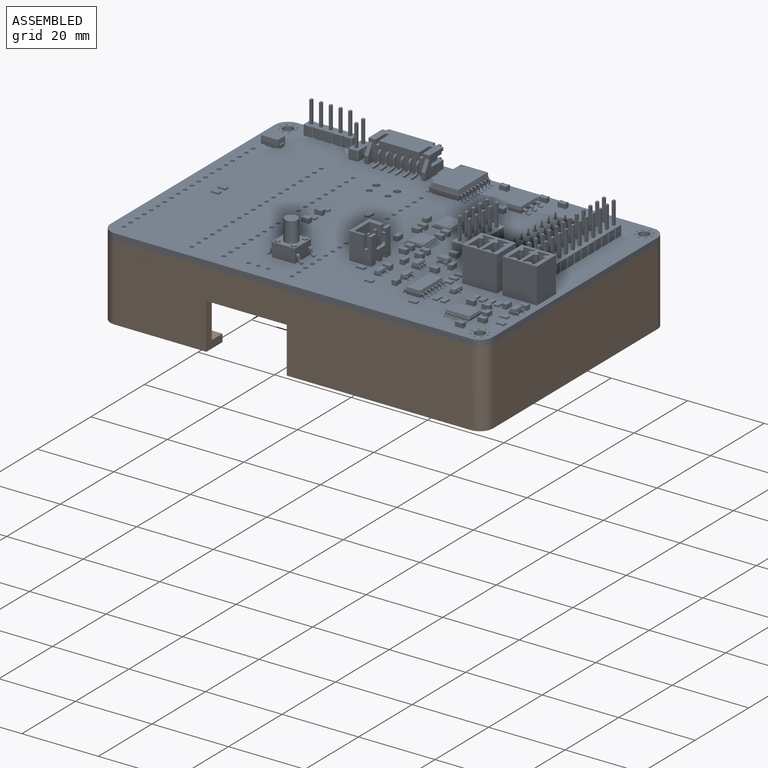
[diagram: assembled view]
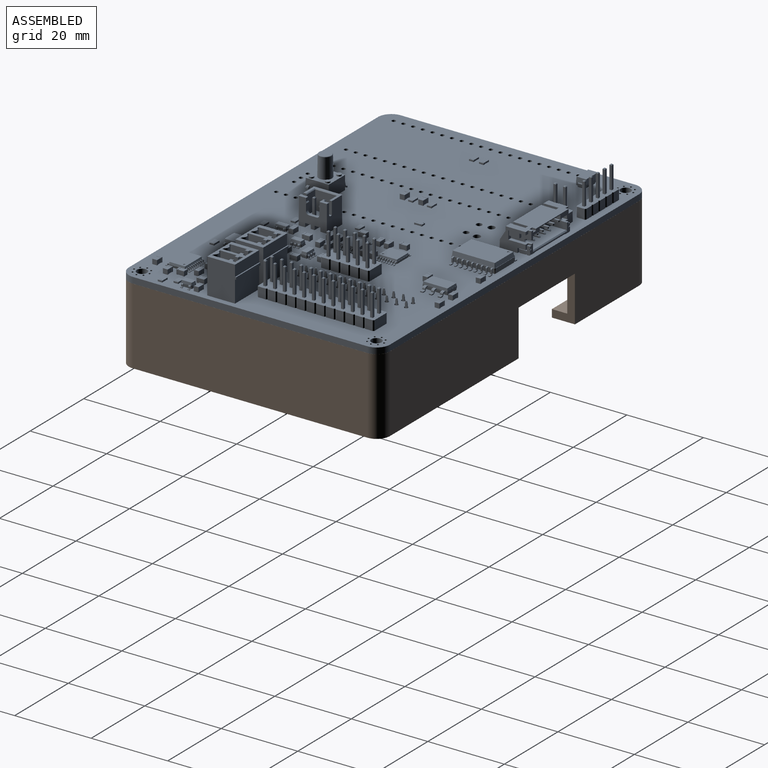
[diagram: assembled view, second angle]
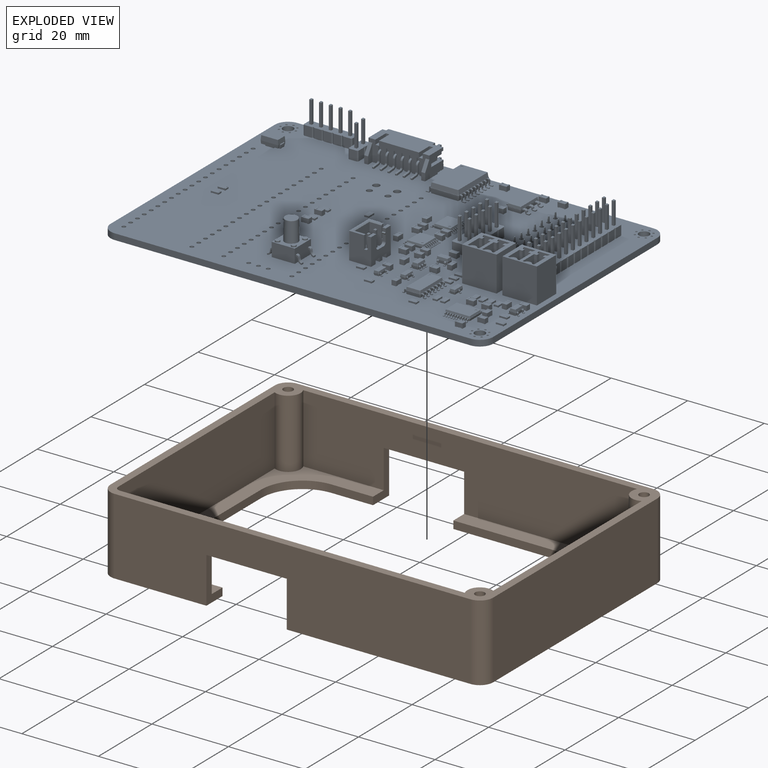
[diagram: exploded view]
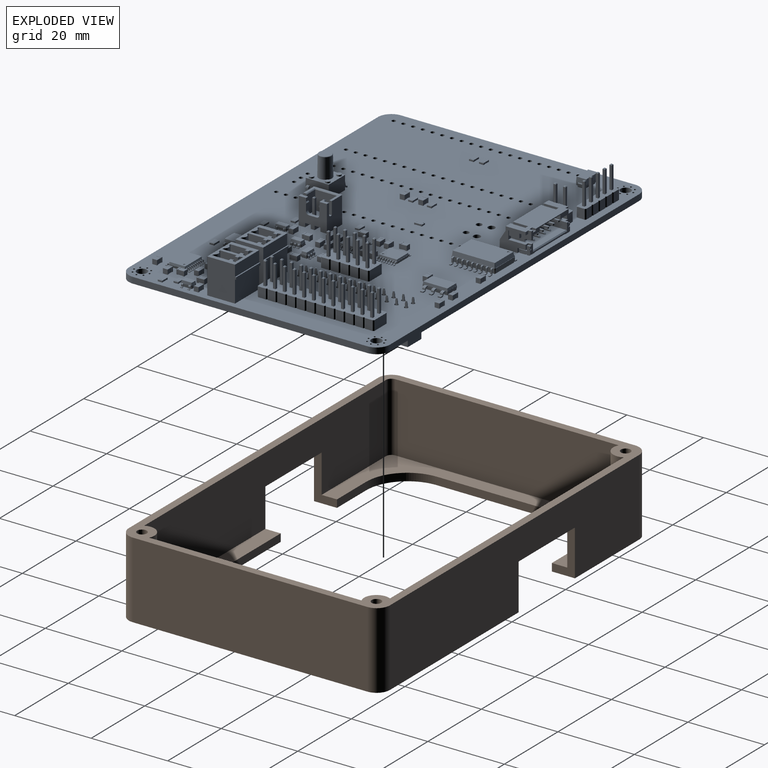
[diagram: exploded view, second angle]
FCSTD DOCUMENT  (FreeCAD 0.20R29603 (Git))
Label: Case1
License: All rights reserved
LicenseURL: http://en.wikipedia.org/wiki/All_rights_reserved
objects: App::Link×53, Part::Feature×39, App::Part×7, Sketcher::SketchObject×4, PartDesign::Pocket×2, PartDesign::CoordinateSystem×1, PartDesign::SubShapeBinder×1, PartDesign::Pad×1, PartDesign::Thickness×1, PartDesign::Body×1
note: 54 computed .brp shape members not serialized (recipe doc carries the construction recipe); baked Part::Feature solids carry a one-line shape summary decoded from their .brp

FEATURE [PartDesign::CoordinateSystem] Local_CS_76d8
  AttacherType = Attacher::AttachEngine3D
  MapMode = 2
  Support = -> [X_Axis001]
FEATURE [Part::Feature] Pcb_76d8
  Placement = pos=(-93.7,99.7,0) rot=(0,0,1;0rad)
  shape: bbox 100 x 68.25 x 1.592 mm, 195 faces (baked)
FEATURE [Sketcher::SketchObject] PCB_Sketch_76d8
  FullyConstrained = false
  sketch-geometry (8):
    g0: LineSegment StartX=-61.95 StartY=-14.55 StartZ=0 EndX=31.05 EndY=-14.55 EndZ=0
    g1: LineSegment StartX=31.0251 StartY=53.7 StartZ=0 EndX=-61.95 EndY=53.7 EndZ=0
    g2: LineSegment StartX=34.55 StartY=-11.05 StartZ=0 EndX=34.5251 EndY=50.2 EndZ=0
    g3: LineSegment StartX=-65.45 StartY=50.2 StartZ=0 EndX=-65.45 EndY=-11.05 EndZ=0
    g4: ArcOfCircle CenterX=-61.95 CenterY=-11.05 CenterZ=0 NormalX=0 NormalY=0 NormalZ=-1 AngleXU=-1.5708 Radius=3.5 StartAngle=0 EndAngle=1.5708
    g5: ArcOfCircle CenterX=31.0251 CenterY=50.2 CenterZ=0 NormalX=0 NormalY=0 NormalZ=-1 AngleXU=1.5708 Radius=3.5 StartAngle=0 EndAngle=1.5708
    g6: ArcOfCircle CenterX=31.05 CenterY=-11.05 CenterZ=0 NormalX=0 NormalY=0 NormalZ=-1 AngleXU=3.14159 Radius=3.5 StartAngle=0 EndAngle=1.5708
    g7: ArcOfCircle CenterX=-61.95 CenterY=50.2 CenterZ=0 NormalX=0 NormalY=0 NormalZ=-1 AngleXU=-2.59331e-07 Radius=3.5 StartAngle=0 EndAngle=1.5708
  constraints (8):
    c: Coincident(g3,g4)
    c: Coincident(g3,g7)
    c: Coincident(g0,g4)
    c: Coincident(g1,g7)
    c: Coincident(g1,g5)
    c: Coincident(g0,g6)
    c: Coincident(g2,g5)
    c: Coincident(g2,g6)
FEATURE [App::Part] Board_Geoms_76d8
  Group = -> [Pcb_76d8,PCB_Sketch_76d8]
  Origin = -> Origin
FEATURE [Part::Feature] Shape  label="R5_R_0805_2012Metric_c332fffaa67e"
  Placement = pos=(-31.581,15.88,0) rot=(0,0,1;0rad)
  shape: bbox 2 x 1.2 x 0.45 mm, 26 faces (baked)
FEATURE [Part::Feature] Shape001  label="D3_SOT_23_f131065e1f10"
  Placement = pos=(15.05,3,0) rot=(0,0,1;0rad)
  shape: bbox 2.5 x 3 x 1.2 mm, 76 faces (baked)
FEATURE [App::Link] R5_R_0805_2012Metric_c332fffaa67e_ln_  label="R16_R_0805_2012Metric_1e8cd921f4f6"
  LinkPlacement = pos=(32.3,-4.85,0) rot=(0,0,1;0rad)
  LinkedObject = -> Shape
  Placement = pos=(32.3,-4.85,0) rot=(0,0,1;0rad)
FEATURE [Part::Feature] Shape002  label="C21_C_0805_2012Metric_70c36fc92965"
  Placement = pos=(28.4,-6.2,0) rot=(0,0,1;0rad)
  shape: bbox 2 x 1.25 x 1.25 mm, 28 faces (baked)
FEATURE [App::Link] R5_R_0805_2012Metric_c332fffaa67e_ln_001  label="R6_R_0805_2012Metric_d104ffac6305"
  LinkPlacement = pos=(-31.5716,20.8076,0) rot=(0,0,1;0rad)
  LinkedObject = -> Shape
  Placement = pos=(-31.5716,20.8076,0) rot=(0,0,1;0rad)
FEATURE [App::Link] C21_C_0805_2012Metric_70c36fc92965_ln_  label="C22_C_0805_2012Metric_fbacbd021950"
  LinkPlacement = pos=(25.8,-10.8,0) rot=(0,0,1;0rad)
  LinkedObject = -> Shape002
  Placement = pos=(25.8,-10.8,0) rot=(0,0,1;0rad)
FEATURE [App::Link] C21_C_0805_2012Metric_70c36fc92965_ln_001  label="C18_C_0805_2012Metric_fe1dbd764d00"
  LinkPlacement = pos=(27.5,-3.2,0) rot=(0,0,-1;1.5708rad)
  LinkedObject = -> Shape002
  Placement = pos=(27.5,-3.2,0) rot=(0,0,-1;1.5708rad)
FEATURE [Part::Feature] Shape003  label="U2_TSSOP_16_44x5mm_P065mm_5dc6f22c2fcc"
  Placement = pos=(-5.2,19,0) rot=(0,0,1;3.14159rad)
  shape: bbox 6.4 x 5 x 1.1 mm, 260 faces (baked)
FEATURE [App::Link] C21_C_0805_2012Metric_70c36fc92965_ln_002  label="C2_C_0805_2012Metric_80b1b84c45aa"
  LinkPlacement = pos=(-3.2,22.95,0) rot=(0,0,1;0rad)
  LinkedObject = -> Shape002
  Placement = pos=(-3.2,22.95,0) rot=(0,0,1;0rad)
FEATURE [App::Link] R5_R_0805_2012Metric_c332fffaa67e_ln_002  label="R1_R_0805_2012Metric_e922cae71224"
  LinkPlacement = pos=(26.3,2.75,0) rot=(0,0,-1;1.5708rad)
  LinkedObject = -> Shape
  Placement = pos=(26.3,2.75,0) rot=(0,0,-1;1.5708rad)
FEATURE [Part::Feature] Shape004  label="JP1_PinHeader_1x02_P254mm_Vertical_bab78b325c3c"
  Placement = pos=(-41.35,46.25,0) rot=(0,0,1;3.14159rad)
  shape: bbox 2.54 x 5.08 x 11.54 mm, 52 faces (baked)
FEATURE [Part::Feature] Shape005  label="U12_SOIC_18W_75x116mm_P127mm_c252929a2548"
  Placement = pos=(-14.3625,46.25,0) rot=(0,0,1;0rad)
  shape: bbox 10.3 x 11.55 x 2.75 mm, 306 faces (baked)
FEATURE [App::Link] C21_C_0805_2012Metric_70c36fc92965_ln_003  label="C8_C_0805_2012Metric_d8ee7a67ca2f"
  LinkPlacement = pos=(-5.45,14.95,0) rot=(0,0,1;3.14159rad)
  LinkedObject = -> Shape002
  Placement = pos=(-5.45,14.95,0) rot=(0,0,1;3.14159rad)
FEATURE [App::Link] C21_C_0805_2012Metric_70c36fc92965_ln_004  label="C9_C_0805_2012Metric_418fcd8e790b"
  LinkPlacement = pos=(-9.2,25.2,0) rot=(0,0,1;3.14159rad)
  LinkedObject = -> Shape002
  Placement = pos=(-9.2,25.2,0) rot=(0,0,1;3.14159rad)
FEATURE [App::Link] C21_C_0805_2012Metric_70c36fc92965_ln_005  label="C12_C_0805_2012Metric_316df33b629b"
  LinkPlacement = pos=(4.506,17.35,0) rot=(0,0,1;3.14159rad)
  LinkedObject = -> Shape002
  Placement = pos=(4.506,17.35,0) rot=(0,0,1;3.14159rad)
FEATURE [App::Link] C21_C_0805_2012Metric_70c36fc92965_ln_006  label="C3_C_0805_2012Metric_8a3f74253228"
  LinkPlacement = pos=(-3.2,25.2,0) rot=(0,0,1;0rad)
  LinkedObject = -> Shape002
  Placement = pos=(-3.2,25.2,0) rot=(0,0,1;0rad)
FEATURE [App::Link] C21_C_0805_2012Metric_70c36fc92965_ln_007  label="C23_C_0805_2012Metric_d6d983b6cebe"
  LinkPlacement = pos=(2.25,-1,0) rot=(0,0,-1;1.5708rad)
  LinkedObject = -> Shape002
  Placement = pos=(2.25,-1,0) rot=(0,0,-1;1.5708rad)
FEATURE [App::Link] C21_C_0805_2012Metric_70c36fc92965_ln_008  label="C14_C_0805_2012Metric_5f28a132bdaa"
  LinkPlacement = pos=(-0.2788,41.6356,0) rot=(0,0,1;0rad)
  LinkedObject = -> Shape002
  Placement = pos=(-0.2788,41.6356,0) rot=(0,0,1;0rad)
FEATURE [App::Link] R5_R_0805_2012Metric_c332fffaa67e_ln_003  label="R18_R_0805_2012Metric_975334e689a0"
  LinkPlacement = pos=(-22.4,24,0) rot=(0,0,1;1.5708rad)
  LinkedObject = -> Shape
  Placement = pos=(-22.4,24,0) rot=(0,0,1;1.5708rad)
FEATURE [App::Link] C21_C_0805_2012Metric_70c36fc92965_ln_009  label="C10_C_0805_2012Metric_9ded190138c7"
  LinkPlacement = pos=(-5.45,12.7,0) rot=(0,0,1;3.14159rad)
  LinkedObject = -> Shape002
  Placement = pos=(-5.45,12.7,0) rot=(0,0,1;3.14159rad)
FEATURE [App::Link] R5_R_0805_2012Metric_c332fffaa67e_ln_004  label="R12_R_0805_2012Metric_6a5c1b664a16"
  LinkPlacement = pos=(-3.3,-3.25,0) rot=(0,0,1;0rad)
  LinkedObject = -> Shape
  Placement = pos=(-3.3,-3.25,0) rot=(0,0,1;0rad)
FEATURE [Part::Feature] Shape006  label="U6_TSSOP_20_44x65mm_P065mm_4278e9939631"
  Placement = pos=(22.8,-5.5,0) rot=(0,0,-1;1.5708rad)
  shape: bbox 6.5 x 6.4 x 1.2 mm, 336 faces (baked)
FEATURE [App::Link] R5_R_0805_2012Metric_c332fffaa67e_ln_005  label="R8_R_0805_2012Metric_b0446ee6098e"
  LinkPlacement = pos=(13.8,-2.25,0) rot=(0,0,1;1.5708rad)
  LinkedObject = -> Shape
  Placement = pos=(13.8,-2.25,0) rot=(0,0,1;1.5708rad)
FEATURE [App::Link] C21_C_0805_2012Metric_70c36fc92965_ln_010  label="C1_C_0805_2012Metric_91f4370ce99c"
  LinkPlacement = pos=(-1.3884,12.7291,0) rot=(0,0,1;0rad)
  LinkedObject = -> Shape002
  Placement = pos=(-1.3884,12.7291,0) rot=(0,0,1;0rad)
FEATURE [App::Link] R5_R_0805_2012Metric_c332fffaa67e_ln_006  label="R11_R_0805_2012Metric_2b7cc4c55eff"
  LinkPlacement = pos=(10.9,5.95,0) rot=(0,0,1;0rad)
  LinkedObject = -> Shape
  Placement = pos=(10.9,5.95,0) rot=(0,0,1;0rad)
FEATURE [App::Link] C21_C_0805_2012Metric_70c36fc92965_ln_011  label="C26_C_0805_2012Metric_c6b21abe853e"
  LinkPlacement = pos=(28.45,2.75,0) rot=(0,0,-1;1.5708rad)
  LinkedObject = -> Shape002
  Placement = pos=(28.45,2.75,0) rot=(0,0,-1;1.5708rad)
FEATURE [Part::Feature] Shape007  label="J8_PinHeader_2x05_P254mm_Vertical_9893bb5028ab"
  Placement = pos=(3.8,30.5,0) rot=(0,0,1;0rad)
  shape: bbox 5.08 x 12.7 x 11.54 mm, 214 faces (baked)
FEATURE [Part::Feature] Shape008  label="J4_PinHeader_2x12_P254mm_Vertical_3dcfa0b37e50"
  Placement = pos=(23.7446,45.725,0) rot=(0,0,1;0rad)
  shape: bbox 5.08 x 30.48 x 11.54 mm, 508 faces (baked)
FEATURE [App::Link] D3_SOT_23_f131065e1f10_ln_  label="D2_SOT_23_bfed7dbed2db"
  LinkPlacement = pos=(2.096,3,0) rot=(0,0,1;3.14159rad)
  LinkedObject = -> Shape001
  Placement = pos=(2.096,3,0) rot=(0,0,1;3.14159rad)
FEATURE [Part::Feature] Shape009  label="U7_SOIC_14_39x87mm_P127mm_ab895dfdb68d"
  Placement = pos=(8.7,0.206,0) rot=(0,0,1;0rad)
  shape: bbox 6 x 8.7 x 1.75 mm, 246 faces (baked)
FEATURE [Part::Feature] Shape010  label="J7_MCV_01x02_G_3_81mm_600c88b03bf4"
  Placement = pos=(26.6625,10.3575,0) rot=(0,0,1;0rad)
  shape: bbox 9.01 x 7.55 x 12.6 mm, 76 faces (baked)
FEATURE [App::Link] R5_R_0805_2012Metric_c332fffaa67e_ln_007  label="R19_R_0805_2012Metric_ff10cc37afbd"
  LinkPlacement = pos=(-55.95,17.3377,0) rot=(0,0,1;0rad)
  LinkedObject = -> Shape
  Placement = pos=(-55.95,17.3377,0) rot=(0,0,1;0rad)
FEATURE [Part::Feature] Shape011  label="U3_SOT_23_5_d6b5d491d0c5"
  Placement = pos=(4.45,13.6,0) rot=(0,0,-1;1.5708rad)
  shape: bbox 2.9 x 2.8 x 1.55 mm, 109 faces (baked)
FEATURE [Part::Feature] Shape012  label="D1_D_SMA_e9ef64f25d9d"
  Placement = pos=(-59.9,41.6,0) rot=(0,0,1;0rad)
  shape: bbox 5 x 2.7 x 2.22 mm, 41 faces (baked)
FEATURE [App::Link] R5_R_0805_2012Metric_c332fffaa67e_ln_008  label="R14_R_0805_2012Metric_57e523e8499f"
  LinkPlacement = pos=(30.95,-1.65,0) rot=(0,0,1;0rad)
  LinkedObject = -> Shape
  Placement = pos=(30.95,-1.65,0) rot=(0,0,1;0rad)
FEATURE [App::Link] C21_C_0805_2012Metric_70c36fc92965_ln_012  label="C25_C_0805_2012Metric_1764e080f5f9"
  LinkPlacement = pos=(31.95,4.35,0) rot=(0,0,1;3.14159rad)
  LinkedObject = -> Shape002
  Placement = pos=(31.95,4.35,0) rot=(0,0,1;3.14159rad)
FEATURE [App::Link] R5_R_0805_2012Metric_c332fffaa67e_ln_009  label="R20_R_0805_2012Metric_aee7117fff60"
  LinkPlacement = pos=(-55.95,14.7378,0) rot=(0,0,1;0rad)
  LinkedObject = -> Shape
  Placement = pos=(-55.95,14.7378,0) rot=(0,0,1;0rad)
FEATURE [App::Link] R5_R_0805_2012Metric_c332fffaa67e_ln_010  label="R10_R_0805_2012Metric_41736ee89816"
  LinkPlacement = pos=(-8.55,1.3,0) rot=(0,0,1;0rad)
  LinkedObject = -> Shape
  Placement = pos=(-8.55,1.3,0) rot=(0,0,1;0rad)
FEATURE [Part::Feature] Shape013  label="J9_JST_B2B_XH_A_4d0ab671784d"
  Placement = pos=(-9.575,7.95,0) rot=(0,0,-1;1.5708rad)
  shape: bbox 5.75 x 7.4 x 10.4 mm, 89 faces (baked)
FEATURE [App::Link] C21_C_0805_2012Metric_70c36fc92965_ln_013  label="C6_C_0805_2012Metric_d5e70f3b6085"
  LinkPlacement = pos=(-10.45,17.7,0) rot=(0,0,-1;1.5708rad)
  LinkedObject = -> Shape002
  Placement = pos=(-10.45,17.7,0) rot=(0,0,-1;1.5708rad)
FEATURE [App::Link] C21_C_0805_2012Metric_70c36fc92965_ln_014  label="C29_C_0805_2012Metric_a1e97758659d"
  LinkPlacement = pos=(-6.2125,51.35,0) rot=(0,0,1;0rad)
  LinkedObject = -> Shape002
  Placement = pos=(-6.2125,51.35,0) rot=(0,0,1;0rad)
FEATURE [App::Link] J7_MCV_01x02_G_3_81mm_600c88b03bf4_ln_  label="J6_MCV_01x02_G_3_81mm_116407b319e3"
  LinkPlacement = pos=(16.1285,10.3575,0) rot=(0,0,1;0rad)
  LinkedObject = -> Shape010
  Placement = pos=(16.1285,10.3575,0) rot=(0,0,1;0rad)
FEATURE [App::Link] C21_C_0805_2012Metric_70c36fc92965_ln_015  label="C13_C_0805_2012Metric_dd824db518f0"
  LinkPlacement = pos=(4.1408,51.3384,0) rot=(0,0,1;3.14159rad)
  LinkedObject = -> Shape002
  Placement = pos=(4.1408,51.3384,0) rot=(0,0,1;3.14159rad)
FEATURE [App::Link] R5_R_0805_2012Metric_c332fffaa67e_ln_011  label="R17_R_0805_2012Metric_6a4e9103eb2e"
  LinkPlacement = pos=(-13.4,14.7,0) rot=(0,0,1;3.14159rad)
  LinkedObject = -> Shape
  Placement = pos=(-13.4,14.7,0) rot=(0,0,1;3.14159rad)
FEATURE [Part::Feature] Part__Feature  label="S6B-PH-SM4-TB(LF)(SN)"
  shape: bbox 0.5 x 0.5 x 4.5 mm, 10 faces (baked)
FEATURE [Part::Feature] Part__Feature001  label="S6B-PH-SM4-TB(LF)(SN)001"
  shape: bbox 0.5 x 0.5 x 4.5 mm, 10 faces (baked)
FEATURE [Part::Feature] Part__Feature002  label="S6B-PH-SM4-TB(LF)(SN)002"
  shape: bbox 0.5 x 0.5 x 4.5 mm, 10 faces (baked)
FEATURE [Part::Feature] Part__Feature003  label="S6B-PH-SM4-TB(LF)(SN)003"
  shape: bbox 0.5 x 2.923 x 2.6 mm, 13 faces (baked)
FEATURE [Part::Feature] Part__Feature004  label="S6B-PH-SM4-TB(LF)(SN)004"
  shape: bbox 0.5 x 2.923 x 2.6 mm, 13 faces (baked)
FEATURE [Part::Feature] Part__Feature005  label="S6B-PH-SM4-TB(LF)(SN)005"
  shape: bbox 0.5 x 2.923 x 2.6 mm, 13 faces (baked)
FEATURE [Part::Feature] Part__Feature006  label="S6B-PH-SM4-TB(LF)(SN)006"
  shape: bbox 0.8 x 1.323 x 2.21 mm, 6 faces (baked)
FEATURE [Part::Feature] Part__Feature007  label="S6B-PH-SM4-TB(LF)(SN)007"
  shape: bbox 0.5 x 2.187 x 3.16 mm, 16 faces (baked)
FEATURE [Part::Feature] Part__Feature008  label="S6B-PH-SM4-TB(LF)(SN)008"
  shape: bbox 15.9 x 5.5 x 7.6 mm, 154 faces (baked)
FEATURE [Part::Feature] Part__Feature009  label="S6B-PH-SM4-TB(LF)(SN)009"
  shape: bbox 0.5 x 2.923 x 2.6 mm, 13 faces (baked)
FEATURE [Part::Feature] Part__Feature010  label="S6B-PH-SM4-TB(LF)(SN)010"
  shape: bbox 0.5 x 2.923 x 2.6 mm, 13 faces (baked)
FEATURE [Part::Feature] Part__Feature011  label="S6B-PH-SM4-TB(LF)(SN)011"
  shape: bbox 0.5 x 2.923 x 2.6 mm, 13 faces (baked)
FEATURE [Part::Feature] Part__Feature012  label="S6B-PH-SM4-TB(LF)(SN)012"
  shape: bbox 0.8 x 1.323 x 2.21 mm, 6 faces (baked)
FEATURE [Part::Feature] Part__Feature013  label="S6B-PH-SM4-TB(LF)(SN)013"
  shape: bbox 0.5 x 2.187 x 3.16 mm, 16 faces (baked)
FEATURE [Part::Feature] Part__Feature014  label="S6B-PH-SM4-TB(LF)(SN)014"
  shape: bbox 0.5 x 0.5 x 4.5 mm, 10 faces (baked)
FEATURE [Part::Feature] Part__Feature015  label="S6B-PH-SM4-TB(LF)(SN)015"
  shape: bbox 0.5 x 0.5 x 4.5 mm, 10 faces (baked)
FEATURE [Part::Feature] Part__Feature016  label="S6B-PH-SM4-TB(LF)(SN)016"
  shape: bbox 0.5 x 0.5 x 4.5 mm, 10 faces (baked)
FEATURE [App::Part] S6B_PH_SM4_TB_LF__SN_  label="J1_S6B-PH-SM4-TB(LF)(SN)017_448ad80cd0b0[2]"
  Group = -> [Part__Feature,Part__Feature001,Part__Feature002,Part__Feature003,Part__Feature004,Part__Feature005,Part__Feature006,Part__Feature007,Part__Feature008,Part__Feature009,Part__Feature010,Part__Feature011,Part__Feature012,Part__Feature013,Part__Feature014,Part__Feature015,Part__Feature016]
  Origin = -> Origin008
  Placement = pos=(-30.4,48.05,0) rot=(0,0,1;3.14159rad)
FEATURE [Part::Feature] Part__Feature017  label="COMPOUND"
  Placement = pos=(0.00025,0.00011,0.00454) rot=(-1,0,0;1.5708rad)
  shape: bbox 0.5 x 2.92 x 2.2 mm, 17 faces (baked)
FEATURE [Part::Feature] Part__Feature018  label="COMPOUND001"
  Placement = pos=(0.00025,0.00011,0.00454) rot=(-1,0,0;1.5708rad)
  shape: bbox 15.91 x 8.628 x 5.605 mm, 321 faces (baked)
FEATURE [Part::Feature] Part__Feature019  label="COMPOUND002"
  Placement = pos=(0.00025,0.00011,0.00454) rot=(-1,0,0;1.5708rad)
  shape: bbox 0.5 x 2.92 x 2.2 mm, 20 faces (baked)
FEATURE [App::Part] COMPOUND  label="J1_COMPOUND003_448ad80cd0b0[3]"
  Group = -> [Part__Feature017,Part__Feature018,Part__Feature019]
  Origin = -> Origin009
  Placement = pos=(-37.6,51.05,0) rot=(1,0,0;3.14159rad)
FEATURE [App::Link] R5_R_0805_2012Metric_c332fffaa67e_ln_012  label="R13_R_0805_2012Metric_ee35ae784279"
  LinkPlacement = pos=(10.9,8.05,0) rot=(0,0,1;0rad)
  LinkedObject = -> Shape
  Placement = pos=(10.9,8.05,0) rot=(0,0,1;0rad)
FEATURE [App::Link] R5_R_0805_2012Metric_c332fffaa67e_ln_013  label="R15_R_0805_2012Metric_d2309399fb8d"
  LinkPlacement = pos=(10.9,10.2,0) rot=(0,0,1;0rad)
  LinkedObject = -> Shape
  Placement = pos=(10.9,10.2,0) rot=(0,0,1;0rad)
FEATURE [Part::Feature] Shape014  label="J3_PinHeader_1x05_P254mm_Vertical_ee2410f2d2c0"
  Placement = pos=(-56.125,50.55,0) rot=(0,0,1;1.5708rad)
  shape: bbox 12.7 x 2.54 x 11.54 mm, 124 faces (baked)
FEATURE [App::Link] C21_C_0805_2012Metric_70c36fc92965_ln_016  label="C7_C_0805_2012Metric_28ef4e81b8cc"
  LinkPlacement = pos=(-9.2,22.95,0) rot=(0,0,1;3.14159rad)
  LinkedObject = -> Shape002
  Placement = pos=(-9.2,22.95,0) rot=(0,0,1;3.14159rad)
FEATURE [App::Link] C21_C_0805_2012Metric_70c36fc92965_ln_017  label="C17_C_0805_2012Metric_b7833c1b5467"
  LinkPlacement = pos=(21.3,-0.25,0) rot=(0,0,1;0rad)
  LinkedObject = -> Shape002
  Placement = pos=(21.3,-0.25,0) rot=(0,0,1;0rad)
FEATURE [App::Link] R5_R_0805_2012Metric_c332fffaa67e_ln_014  label="R4_R_0805_2012Metric_82f486ae9654"
  LinkPlacement = pos=(22.3,2.75,0) rot=(0,0,-1;1.5708rad)
  LinkedObject = -> Shape
  Placement = pos=(22.3,2.75,0) rot=(0,0,-1;1.5708rad)
FEATURE [App::Link] U3_SOT_23_5_d6b5d491d0c5_ln_  label="U9_SOT_23_5_6b4e87f85682"
  LinkPlacement = pos=(31.8,1.55,0) rot=(0,0,1;0rad)
  LinkedObject = -> Shape011
  Placement = pos=(31.8,1.55,0) rot=(0,0,1;0rad)
FEATURE [App::Link] D3_SOT_23_f131065e1f10_ln_001  label="U8_SOT_23_b651db3e5ede"
  LinkPlacement = pos=(-3.65,1.3,0) rot=(0,0,1;3.14159rad)
  LinkedObject = -> Shape001
  Placement = pos=(-3.65,1.3,0) rot=(0,0,1;3.14159rad)
FEATURE [Part::Feature] Shape015  label="SW1_Tactal Switch - SMD (6mmx 6mmx__mm) - Marked_5d5b019a6e61[2]"
  Placement = pos=(-24.5,-2.1,0) rot=(0,0,1;0rad)
  shape: bbox 9.035 x 6.05 x 9.018 mm, 213 faces (baked)
FEATURE [App::Link] U3_SOT_23_5_d6b5d491d0c5_ln_001  label="U10_SOT_23_5_6067d64b048d"
  LinkPlacement = pos=(1.25,8.7,0) rot=(0,0,1;3.14159rad)
  LinkedObject = -> Shape011
  Placement = pos=(1.25,8.7,0) rot=(0,0,1;3.14159rad)
FEATURE [App::Link] C21_C_0805_2012Metric_70c36fc92965_ln_018  label="C27_C_0805_2012Metric_e91053142475"
  LinkPlacement = pos=(-2.45,8.65,0) rot=(0,0,1;1.5708rad)
  LinkedObject = -> Shape002
  Placement = pos=(-2.45,8.65,0) rot=(0,0,1;1.5708rad)
FEATURE [App::Link] C21_C_0805_2012Metric_70c36fc92965_ln_019  label="C28_C_0805_2012Metric_1bca3b98ecde"
  LinkPlacement = pos=(5.4,8.75,0) rot=(0,0,1;3.14159rad)
  LinkedObject = -> Shape002
  Placement = pos=(5.4,8.75,0) rot=(0,0,1;3.14159rad)
FEATURE [App::Link] R5_R_0805_2012Metric_c332fffaa67e_ln_015  label="R7_R_0805_2012Metric_181076374416"
  LinkPlacement = pos=(15.8,-2.25,0) rot=(0,0,-1;1.5708rad)
  LinkedObject = -> Shape
  Placement = pos=(15.8,-2.25,0) rot=(0,0,-1;1.5708rad)
FEATURE [App::Link] C21_C_0805_2012Metric_70c36fc92965_ln_020  label="C19_C_0805_2012Metric_6b76f1d3ed69"
  LinkPlacement = pos=(-31.597,13.721,0) rot=(0,0,1;0rad)
  LinkedObject = -> Shape002
  Placement = pos=(-31.597,13.721,0) rot=(0,0,1;0rad)
FEATURE [App::Link] C21_C_0805_2012Metric_70c36fc92965_ln_021  label="C5_C_0805_2012Metric_31ecd7e5f020"
  LinkPlacement = pos=(-10.45,28.45,0) rot=(0,0,-1;1.5708rad)
  LinkedObject = -> Shape002
  Placement = pos=(-10.45,28.45,0) rot=(0,0,-1;1.5708rad)
FEATURE [App::Link] R5_R_0805_2012Metric_c332fffaa67e_ln_016  label="R3_R_0805_2012Metric_2fc289b2e36d"
  LinkPlacement = pos=(20.3,2.75,0) rot=(0,0,-1;1.5708rad)
  LinkedObject = -> Shape
  Placement = pos=(20.3,2.75,0) rot=(0,0,-1;1.5708rad)
FEATURE [App::Link] C21_C_0805_2012Metric_70c36fc92965_ln_022  label="C11_C_0805_2012Metric_e9c591040701"
  LinkPlacement = pos=(9.1192,51.3384,0) rot=(0,0,1;0rad)
  LinkedObject = -> Shape002
  Placement = pos=(9.1192,51.3384,0) rot=(0,0,1;0rad)
FEATURE [App::Link] C21_C_0805_2012Metric_70c36fc92965_ln_023  label="C24_C_0805_2012Metric_6bb21c860862"
  LinkPlacement = pos=(-3.65,4.15,0) rot=(0,0,1;3.14159rad)
  LinkedObject = -> Shape002
  Placement = pos=(-3.65,4.15,0) rot=(0,0,1;3.14159rad)
FEATURE [App::Link] R5_R_0805_2012Metric_c332fffaa67e_ln_017  label="R9_R_0805_2012Metric_228b6a2c5310"
  LinkPlacement = pos=(10.5924,-6.5,0) rot=(0,0,1;3.14159rad)
  LinkedObject = -> Shape
  Placement = pos=(10.5924,-6.5,0) rot=(0,0,1;3.14159rad)
FEATURE [App::Link] C21_C_0805_2012Metric_70c36fc92965_ln_024  label="C4_C_0805_2012Metric_a9c795c05989"
  LinkPlacement = pos=(-1.3884,14.9791,0) rot=(0,0,1;0rad)
  LinkedObject = -> Shape002
  Placement = pos=(-1.3884,14.9791,0) rot=(0,0,1;0rad)
FEATURE [Part::Feature] Shape016  label="U4_SOT_223_77804c9ac5c6"
  Placement = pos=(2.0632,46.4136,0) rot=(0,0,1;3.14159rad)
  shape: bbox 7 x 6.5 x 1.7 mm, 78 faces (baked)
FEATURE [App::Link] C21_C_0805_2012Metric_70c36fc92965_ln_025  label="C15_C_0805_2012Metric_8ecafb67b521"
  LinkPlacement = pos=(7.45,12.3,0) rot=(0,0,-1;1.5708rad)
  LinkedObject = -> Shape002
  Placement = pos=(7.45,12.3,0) rot=(0,0,-1;1.5708rad)
FEATURE [App::Link] C21_C_0805_2012Metric_70c36fc92965_ln_026  label="C20_C_0805_2012Metric_075b7dab5dc7"
  LinkPlacement = pos=(-31.5716,18.5724,0) rot=(0,0,1;0rad)
  LinkedObject = -> Shape002
  Placement = pos=(-31.5716,18.5724,0) rot=(0,0,1;0rad)
FEATURE [App::Link] U2_TSSOP_16_44x5mm_P065mm_5dc6f22c2fcc_ln_  label="U1_TSSOP_16_44x5mm_P065mm_e16f109a01b5"
  LinkPlacement = pos=(-5.2,29.2,0) rot=(0,0,1;3.14159rad)
  LinkedObject = -> Shape003
  Placement = pos=(-5.2,29.2,0) rot=(0,0,1;3.14159rad)
FEATURE [App::Link] R5_R_0805_2012Metric_c332fffaa67e_ln_018  label="R2_R_0805_2012Metric_d7e5e0ca6f22"
  LinkPlacement = pos=(24.3,2.75,0) rot=(0,0,-1;1.5708rad)
  LinkedObject = -> Shape
  Placement = pos=(24.3,2.75,0) rot=(0,0,-1;1.5708rad)
FEATURE [App::Link] C21_C_0805_2012Metric_70c36fc92965_ln_027  label="C16_C_0805_2012Metric_b2d3e1e6e15b"
  LinkPlacement = pos=(25.3,-0.25,0) rot=(0,0,1;3.14159rad)
  LinkedObject = -> Shape002
  Placement = pos=(25.3,-0.25,0) rot=(0,0,1;3.14159rad)
FEATURE [App::Part] Top_76d8
  Group = -> [Shape,Shape001,R5_R_0805_2012Metric_c332fffaa67e_ln_,Shape002,R5_R_0805_2012Metric_c332fffaa67e_ln_001,C21_C_0805_2012Metric_70c36fc92965_ln_,C21_C_0805_2012Metric_70c36fc92965_ln_001,Shape003,C21_C_0805_2012Metric_70c36fc92965_ln_002,R5_R_0805_2012Metric_c332fffaa67e_ln_002,Shape004,Shape005,C21_C_0805_2012Metric_70c36fc92965_ln_003,C21_C_0805_2012Metric_70c36fc92965_ln_004,+58 more]
  Origin = -> Origin003
FEATURE [Part::Feature] Shape017  label="J2_PinSocket_2x12_P254mm_Vertical_20041d601904"
  Placement = pos=(11.0296,45.7304,-1.592) rot=(0,1,0;3.14159rad)
  shape: bbox 5.08 x 30.48 x 10.1 mm, 754 faces (baked)
FEATURE [App::Part] Bot_76d8
  Group = -> [Shape017]
  Origin = -> Origin004
FEATURE [App::Part] Step_Models_76d8
  Group = -> [Top_76d8,Bot_76d8]
  Origin = -> Origin002
FEATURE [App::Part] Board_76d8  label="El-Load-V2-Digital"
  Group = -> [Local_CS_76d8,Board_Geoms_76d8,Step_Models_76d8]
  Origin = -> Origin001
  Placement = pos=(15.5,-13,0) rot=(0,0,1;0rad)
FEATURE [PartDesign::SubShapeBinder] Binder
  BindCopyOnChange = 0
  BindMode = 0
  ClaimChildren = false
  Context = -> Body [Binder.]
  Fuse = false
  MakeFace = true
  OffsetFill = false
  OffsetIntersection = false
  OffsetJoinType = 0
  OffsetOpenResult = false
  PartialLoad = false
  Relative = true
  Support = -> [Board_76d8[Board_Geoms_76d8.]]
  _Version = 2
FEATURE [Sketcher::SketchObject] Sketch
  ExternalGeometry = -> [Binder]
  FullyConstrained = true
  MapMode = 5
  Support = -> [XY_Plane010]
  sketch-geometry (15):
    g0: LineSegment StartX=-46.45 StartY=40.7 StartZ=0 EndX=46.5237 EndY=40.7 EndZ=0
    g1: LineSegment StartX=50.0251 StartY=37.2 StartZ=0 EndX=50.05 EndY=-24.05 EndZ=0
    g2: LineSegment StartX=46.55 StartY=-27.55 StartZ=0 EndX=-46.4892 EndY=-27.5122 EndZ=0
    g3: LineSegment StartX=-49.95 StartY=-24.05 StartZ=0 EndX=-49.95 EndY=37.2 EndZ=0
    g4: ArcOfCircle CenterX=-46.45 CenterY=37.2 CenterZ=0 NormalX=0 NormalY=0 NormalZ=1 AngleXU=0 Radius=3.5 StartAngle=1.5708 EndAngle=3.14159
    g5: GeomPoint X=-49.95 Y=40.7 Z=0
    g6: ArcOfCircle CenterX=-46.4878 CenterY=-24.05 CenterZ=0 NormalX=0 NormalY=0 NormalZ=1 AngleXU=0 Radius=3.46222 StartAngle=3.14159 EndAngle=4.71198
    g7: GeomPoint X=-49.95 Y=-27.5108 Z=0
    g8: ArcOfCircle CenterX=46.5514 CenterY=-24.0514 CenterZ=0 NormalX=0 NormalY=0 NormalZ=1 AngleXU=0 Radius=3.49858 StartAngle=4.71198 EndAngle=6.28359
    g9: GeomPoint X=50.0514 Y=-27.5514 Z=0
    g10: ArcOfCircle CenterX=46.5237 CenterY=37.1986 CenterZ=0 NormalX=0 NormalY=0 NormalZ=1 AngleXU=0 Radius=3.50142 StartAngle=0.000406106 EndAngle=1.5708
    g11: GeomPoint X=50.0237 Y=40.7 Z=0
    g12: Circle CenterX=-46.45 CenterY=37.2 CenterZ=0 NormalX=0 NormalY=0 NormalZ=1 AngleXU=0 Radius=1.25
    g13: Circle CenterX=46.6 CenterY=37.2 CenterZ=0 NormalX=0 NormalY=0 NormalZ=1 AngleXU=0 Radius=1.25
    g14: Circle CenterX=46.6 CenterY=-24.1 CenterZ=0 NormalX=0 NormalY=0 NormalZ=1 AngleXU=0 Radius=1.25
  constraints (28):
    c: PointOnObject(g5,g0)
    c: PointOnObject(g5,g3)
    c: Tangent(g0,g4) = 1.5708
    c: Tangent(g3,g4) = 1.5708
    c: PointOnObject(g7,g2)
    c: PointOnObject(g7,g3)
    c: Tangent(g2,g6) = 1.5708
    c: Tangent(g3,g6) = 1.5708
    c: PointOnObject(g9,g1)
    c: PointOnObject(g9,g2)
    c: Tangent(g1,g8) = 1.5708
    c: Tangent(g2,g8) = 1.5708
    c: PointOnObject(g11,g0)
    c: PointOnObject(g11,g1)
    c: Tangent(g1,g10) = 1.5708
    c: Coincident(g3,g-3)
    c: Coincident(g-4,g0)
    c: Coincident(g3,g-3)
    c: Coincident(g1,g-5)
    c: Coincident(g1,g-5)
    c: Coincident(g2,g-6)
    c: Tangent(g0,g10) = 1.5708
    c: Coincident(g12,g4)
    c: Coincident(g13,g-7)
    c: Coincident(g14,g-8)
    c: Equal(g14,g13)
    c: Equal(g14,g12)
    c: Diameter(g14) = 2.5
FEATURE [PartDesign::Pad] Pad
  Direction = (0,0,1)
  Length = 20
  Length2 = 10
  Profile = -> Sketch
  ReferenceAxis = -> Sketch [N_Axis]
  Type = 0
FEATURE [PartDesign::Thickness] Thickness
  Base = -> Pad [Face13]
  BaseFeature = -> Pad
  Intersection = true
  Join = 0
  Mode = 0
  Reversed = true
  SupportTransform = false
  Value = 2
FEATURE [Sketcher::SketchObject] Sketch001
  ExternalGeometry = -> [Pad]
  FullyConstrained = false
  MapMode = 5
  Support = -> [XY_Plane010]
  sketch-geometry (14):
    g0: ArcOfCircle CenterX=-33.3275 CenterY=23.8013 CenterZ=0 NormalX=0 NormalY=0 NormalZ=1 AngleXU=0 Radius=10.8663 StartAngle=1.5708 EndAngle=3.14159
    g1: LineSegment StartX=-33.3275 StartY=34.6676 StartZ=0 EndX=33.3275 EndY=34.6676 EndZ=0
    g2: ArcOfCircle CenterX=33.3275 CenterY=23.8013 CenterZ=0 NormalX=0 NormalY=0 NormalZ=1 AngleXU=0 Radius=10.8663 StartAngle=-9.68e-14 EndAngle=1.5708
    g3: LineSegment StartX=44.1938 StartY=23.8013 StartZ=0 EndX=44.1938 EndY=-10.6459 EndZ=0
    g4: ArcOfCircle CenterX=33.3275 CenterY=-10.6459 CenterZ=0 NormalX=0 NormalY=0 NormalZ=1 AngleXU=0 Radius=10.8663 StartAngle=4.71239 EndAngle=6.28319
    g5: LineSegment StartX=33.3275 StartY=-21.5122 StartZ=0 EndX=-33.3275 EndY=-21.5122 EndZ=0
    g6: ArcOfCircle CenterX=-33.3275 CenterY=-10.6459 CenterZ=0 NormalX=0 NormalY=0 NormalZ=1 AngleXU=0 Radius=10.8663 StartAngle=3.14159 EndAngle=4.71239
    g7: LineSegment StartX=-44.1938 StartY=-10.6459 StartZ=0 EndX=-44.1938 EndY=23.8013 EndZ=0
    g8: GeomPoint X=-44.1938 Y=34.6676 Z=0
    g9: GeomPoint X=44.1938 Y=-21.5122 Z=0
    g10: LineSegment StartX=-44.1938 StartY=-10.6459 StartZ=0 EndX=-50.2262 EndY=-10.6459 EndZ=0
    g11: LineSegment StartX=-33.3275 StartY=34.6676 StartZ=0 EndX=-33.3275 EndY=40.7 EndZ=0
    g12: LineSegment StartX=44.1938 StartY=23.8013 StartZ=0 EndX=50.0312 EndY=22.2799 EndZ=0
    g13: LineSegment StartX=33.3275 StartY=-21.5122 StartZ=0 EndX=33.3275 EndY=-27.5446 EndZ=0
  constraints (33):
    c: Tangent(g0,g1) = 1.5708
    c: Tangent(g1,g2) = 1.5708
    c: Tangent(g2,g3) = 1.5708
    c: Tangent(g3,g4) = 1.5708
    c: Tangent(g4,g5) = 1.5708
    c: Tangent(g5,g6) = 1.5708
    c: Tangent(g6,g7) = 1.5708
    c: Tangent(g7,g0) = 1.5708
    c: Horizontal(g5)
    c: Vertical(g3)
    c: Vertical(g7)
    c: Equal(g0,g2)
    c: Equal(g2,g4)
    c: Equal(g4,g6)
    c: PointOnObject(g8,g1)
    c: PointOnObject(g8,g7)
    c: PointOnObject(g9,g3)
    c: PointOnObject(g9,g5)
    c: Symmetric(g0,g1,g-2)
    c: DistanceY(g-6,g5) = 6
    c: Coincident(g10,g6)
    c: Horizontal(g10)
    c: Coincident(g11,g0)
    c: PointOnObject(g11,g-4)
    c: Vertical(g11)
    c: Coincident(g12,g2)
    c: PointOnObject(g12,g-5)
    c: Coincident(g13,g4)
    c: PointOnObject(g13,g-6)
    c: Vertical(g13)
    c: Equal(g13,g12)
    c: Equal(g12,g11)
    c: Equal(g11,g10)
FEATURE [PartDesign::Pocket] Pocket
  BaseFeature = -> Thickness
  Direction = (0,0,-1)
  Length = 5
  Length2 = 5
  Midplane = true
  Profile = -> Sketch001
  ReferenceAxis = -> Sketch001 [N_Axis]
  Type = 1
FEATURE [Sketcher::SketchObject] Sketch002
  ExternalGeometry = -> [Pocket]
  FullyConstrained = true
  MapMode = 5
  Placement = pos=(0,0,0) rot=(1,0,0;1.5708rad)
  Support = -> [XZ_Plane010]
  expr: Constraints[9] = <<Pad>>.Length - 8mm
  sketch-geometry (4):
    g0: LineSegment StartX=-22.5 StartY=0 StartZ=0 EndX=-1.5 EndY=0 EndZ=0
    g1: LineSegment StartX=-1.5 StartY=0 StartZ=0 EndX=-1.5 EndY=12 EndZ=0
    g2: LineSegment StartX=-1.5 StartY=12 StartZ=0 EndX=-22.5 EndY=12 EndZ=0
    g3: LineSegment StartX=-22.5 StartY=12 StartZ=0 EndX=-22.5 EndY=0 EndZ=0
  constraints (12):
    c: Coincident(g0,g1)
    c: Coincident(g1,g2)
    c: Coincident(g2,g3)
    c: Coincident(g3,g0)
    c: Horizontal(g0)
    c: Horizontal(g2)
    c: Vertical(g1)
    c: Vertical(g3)
    c: PointOnObject(g0,g-1)
    c: DistanceY(g3,g3) = 12
    c: DistanceX(g2,g2) = 21
    c: DistanceX(g0,g-1) = 1.5
FEATURE [PartDesign::Pocket] Pocket001
  BaseFeature = -> Pocket
  Direction = (0,1,-2e-16)
  Length = 5
  Length2 = 5
  Midplane = true
  Profile = -> Sketch002
  ReferenceAxis = -> Sketch002 [N_Axis]
  Type = 1
FEATURE [PartDesign::Body] Body
  Group = -> [Sketch,Binder,Pad,Thickness,Sketch001,Pocket,Sketch002,Pocket001]
  Origin = -> Origin010
  Placement = pos=(0,0,-21.6) rot=(0,0,1;0rad)
  Tip = -> Pocket001
